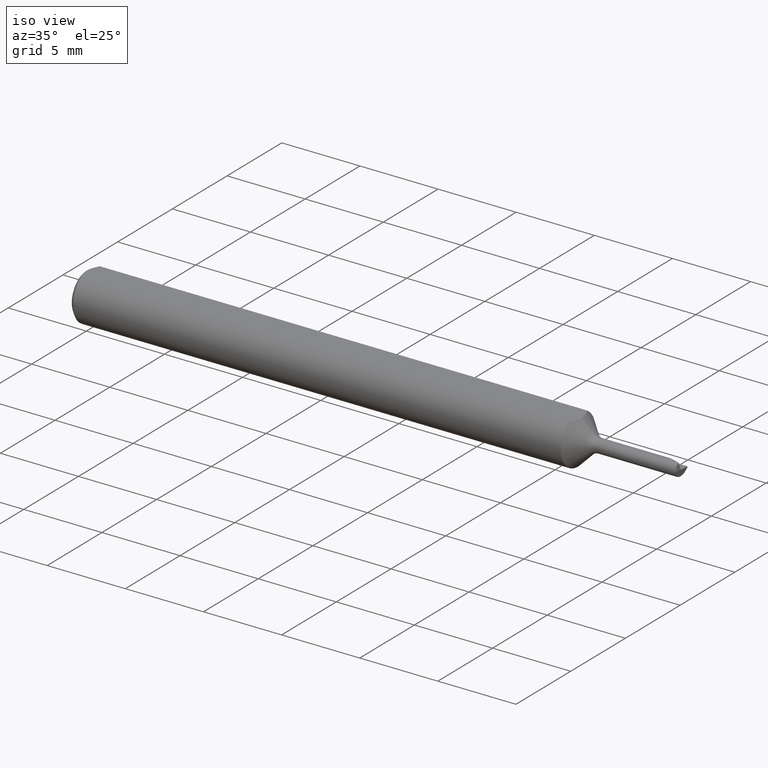
[diagram: clean part render]
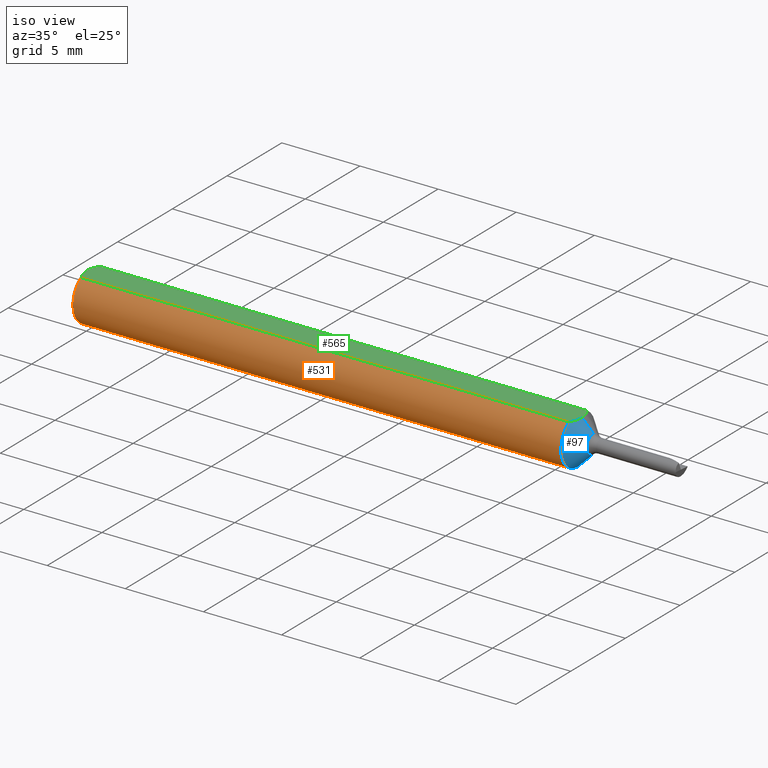
[diagram: same view with three faces highlighted in distinct colors, each labeled with its STEP entity id]
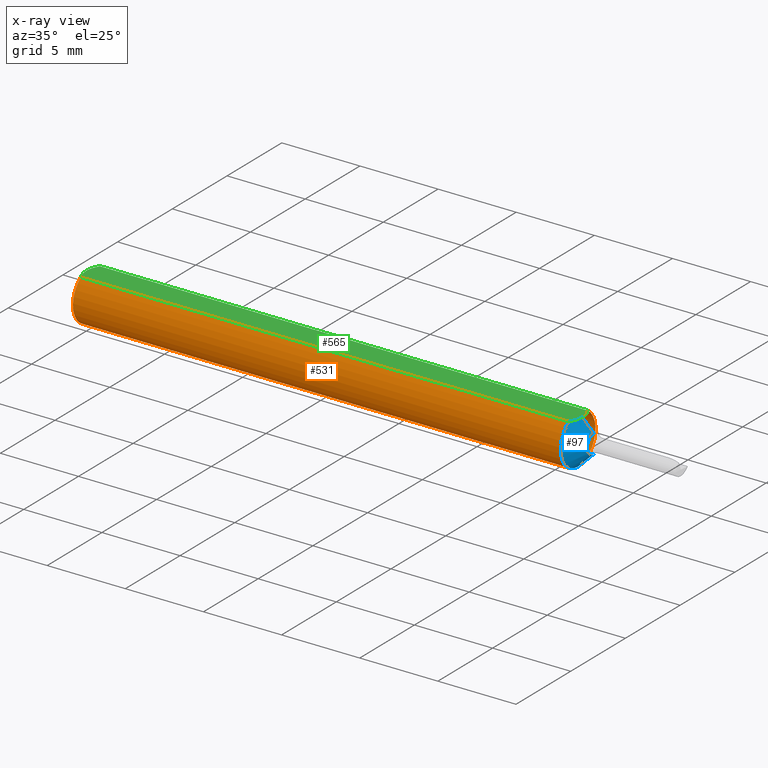
[diagram: x-ray of the same camera — body ghosted, the three highlighted faces saturated]
A machine part, iso view with three faces highlighted in distinct colors.
The next image is the same camera in x-ray (body ghosted, the three faces saturated) — at least one of them is partly hidden behind the body in this view.
Their STEP definitions:

[orange] entity #531 — the highlighted cylindrical surface (edge-blend (fillet) strip) has radius 1.5837 mm, axis along (-1, -0, -0).
#21 = ORIENTED_EDGE ( 'NONE', *, *, #352, .T. ) ;
#36 = AXIS2_PLACEMENT_3D ( 'NONE', #297, #524, #683 ) ;
#46 = DIRECTION ( 'NONE',  ( 0.000000000000000000, 0.000000000000000000, 1.000000000000000000 ) ) ;
#75 = CARTESIAN_POINT ( 'NONE',  ( 0.000000000000000000, 0.03386738844375220686, 0.05235000000000000070 ) ) ;
#76 = EDGE_CURVE ( 'NONE', #393, #588, #231, .T. ) ;
#79 = VERTEX_POINT ( 'NONE', #140 ) ;
#105 = ORIENTED_EDGE ( 'NONE', *, *, #76, .T. ) ;
#109 = EDGE_LOOP ( 'NONE', ( #21, #649, #546, #105, #596, #701 ) ) ;
#140 = CARTESIAN_POINT ( 'NONE',  ( 1.239150000000000418, 0.03386738844375220686, 0.05235000000000000070 ) ) ;
#153 = VERTEX_POINT ( 'NONE', #686 ) ;
#182 = CYLINDRICAL_SURFACE ( 'NONE', #238, 0.06235000000000000264 ) ;
#213 = DIRECTION ( 'NONE',  ( -1.000000000000000000, -0.000000000000000000, -0.000000000000000000 ) ) ;
#219 = DIRECTION ( 'NONE',  ( -1.000000000000000000, -0.000000000000000000, -0.000000000000000000 ) ) ;
#231 = CIRCLE ( 'NONE', #36, 0.06235000000000000264 ) ;
#238 = AXIS2_PLACEMENT_3D ( 'NONE', #630, #619, #364 ) ;
#249 = CARTESIAN_POINT ( 'NONE',  ( 1.239150000000000418, 7.635672792683746671E-18, -0.06235000000000000264 ) ) ;
#263 = CIRCLE ( 'NONE', #661, 0.06235000000000000264 ) ;
#297 = CARTESIAN_POINT ( 'NONE',  ( 0.009999999999999887451, 0.000000000000000000, 0.000000000000000000 ) ) ;
#298 = AXIS2_PLACEMENT_3D ( 'NONE', #483, #548, #327 ) ;
#307 = VERTEX_POINT ( 'NONE', #494 ) ;
#321 = EDGE_CURVE ( 'NONE', #669, #307, #540, .T. ) ;
#327 = DIRECTION ( 'NONE',  ( 0.000000000000000000, 0.000000000000000000, 1.000000000000000000 ) ) ;
#338 = EDGE_CURVE ( 'NONE', #307, #393, #645, .T. ) ;
#352 = EDGE_CURVE ( 'NONE', #79, #669, #447, .T. ) ;
#364 = DIRECTION ( 'NONE',  ( 0.000000000000000000, 0.000000000000000000, 1.000000000000000000 ) ) ;
#388 = VECTOR ( 'NONE', #660, 39.37007874015748143 ) ;
#393 = VERTEX_POINT ( 'NONE', #590 ) ;
#404 = DIRECTION ( 'NONE',  ( 1.000000000000000000, 0.000000000000000000, 0.000000000000000000 ) ) ;
#412 = EDGE_CURVE ( 'NONE', #153, #79, #512, .T. ) ;
#440 = CARTESIAN_POINT ( 'NONE',  ( 1.239150000000000418, 0.000000000000000000, 0.000000000000000000 ) ) ;
#447 = CIRCLE ( 'NONE', #298, 0.06235000000000000264 ) ;
#455 = FACE_OUTER_BOUND ( 'NONE', #109, .T. ) ;
#462 = CARTESIAN_POINT ( 'NONE',  ( 0.009999999999999887451, 0.000000000000000000, 0.000000000000000000 ) ) ;
#483 = CARTESIAN_POINT ( 'NONE',  ( 1.239150000000000418, 0.000000000000000000, 0.000000000000000000 ) ) ;
#494 = CARTESIAN_POINT ( 'NONE',  ( 1.239150000000000418, -0.03386738844375220686, 0.05235000000000000070 ) ) ;
#512 = LINE ( 'NONE', #75, #388 ) ;
#517 = AXIS2_PLACEMENT_3D ( 'NONE', #440, #213, #46 ) ;
#523 = DIRECTION ( 'NONE',  ( 0.000000000000000000, 0.000000000000000000, -1.000000000000000000 ) ) ;
#524 = DIRECTION ( 'NONE',  ( 1.000000000000000000, 0.000000000000000000, 0.000000000000000000 ) ) ;
#531 = ADVANCED_FACE ( 'NONE', ( #455 ), #182, .T. ) ;
#540 = CIRCLE ( 'NONE', #517, 0.06235000000000000264 ) ;
#546 = ORIENTED_EDGE ( 'NONE', *, *, #338, .T. ) ;
#548 = DIRECTION ( 'NONE',  ( -1.000000000000000000, -0.000000000000000000, -0.000000000000000000 ) ) ;
#582 = CARTESIAN_POINT ( 'NONE',  ( 0.009999999999999887451, 0.000000000000000000, -0.06235000000000000264 ) ) ;
#588 = VERTEX_POINT ( 'NONE', #582 ) ;
#590 = CARTESIAN_POINT ( 'NONE',  ( 0.01000000000000840841, -0.03386738844395137393, 0.05235000000000001458 ) ) ;
#592 = EDGE_CURVE ( 'NONE', #588, #153, #263, .T. ) ;
#596 = ORIENTED_EDGE ( 'NONE', *, *, #592, .T. ) ;
#597 = CARTESIAN_POINT ( 'NONE',  ( 0.000000000000000000, -0.03386738844375220686, 0.05235000000000000070 ) ) ;
#619 = DIRECTION ( 'NONE',  ( -1.000000000000000000, -0.000000000000000000, -0.000000000000000000 ) ) ;
#626 = VECTOR ( 'NONE', #219, 39.37007874015748143 ) ;
#630 = CARTESIAN_POINT ( 'NONE',  ( 0.000000000000000000, 0.000000000000000000, 0.000000000000000000 ) ) ;
#645 = LINE ( 'NONE', #597, #626 ) ;
#649 = ORIENTED_EDGE ( 'NONE', *, *, #321, .T. ) ;
#660 = DIRECTION ( 'NONE',  ( 1.000000000000000000, 0.000000000000000000, 0.000000000000000000 ) ) ;
#661 = AXIS2_PLACEMENT_3D ( 'NONE', #462, #404, #523 ) ;
#669 = VERTEX_POINT ( 'NONE', #249 ) ;
#683 = DIRECTION ( 'NONE',  ( 0.000000000000000000, 0.000000000000000000, -1.000000000000000000 ) ) ;
#686 = CARTESIAN_POINT ( 'NONE',  ( 0.009999999999999890921, 0.03386738844375217911, 0.05235000000000001458 ) ) ;
#701 = ORIENTED_EDGE ( 'NONE', *, *, #412, .T. ) ;

[blue] entity #97 — the highlighted conical surface has half-angle 45 deg.
#12 = CARTESIAN_POINT ( 'NONE',  ( 1.249150000000000205, -0.005924191432847210857, 0.05235000000000002152 ) ) ;
#13 = ORIENTED_EDGE ( 'NONE', *, *, #608, .T. ) ;
#41 = CIRCLE ( 'NONE', #381, 0.02382233047033641138 ) ;
#43 = CARTESIAN_POINT ( 'NONE',  ( 1.277677669529663662, 2.917394075872794992E-18, -0.02382233047033641138 ) ) ;
#46 = DIRECTION ( 'NONE',  ( 0.000000000000000000, 0.000000000000000000, 1.000000000000000000 ) ) ;
#47 = VECTOR ( 'NONE', #677, 39.37007874015748143 ) ;
#83 = LINE ( 'NONE', #43, #530 ) ;
#86 = DIRECTION ( 'NONE',  ( -1.000000000000000000, -0.000000000000000000, -0.000000000000000000 ) ) ;
#87 = ORIENTED_EDGE ( 'NONE', *, *, #321, .F. ) ;
#97 = ADVANCED_FACE ( 'NONE', ( #191 ), #313, .T. ) ;
#99 = VERTEX_POINT ( 'NONE', #199 ) ;
#119 = CARTESIAN_POINT ( 'NONE',  ( 1.249150000000000205, -2.188252446738582210E-21, 0.05235000000000001458 ) ) ;
#141 = EDGE_CURVE ( 'NONE', #403, #669, #83, .T. ) ;
#150 = EDGE_CURVE ( 'NONE', #403, #550, #41, .T. ) ;
#191 = FACE_OUTER_BOUND ( 'NONE', #612, .T. ) ;
#194 = DIRECTION ( 'NONE',  ( -1.000000000000000000, -0.000000000000000000, -0.000000000000000000 ) ) ;
#198 = LINE ( 'NONE', #633, #47 ) ;
#199 = CARTESIAN_POINT ( 'NONE',  ( 1.249150000000000205, -2.188252446738582210E-21, 0.05235000000000001458 ) ) ;
#213 = DIRECTION ( 'NONE',  ( -1.000000000000000000, -0.000000000000000000, -0.000000000000000000 ) ) ;
#249 = CARTESIAN_POINT ( 'NONE',  ( 1.239150000000000418, 7.635672792683746671E-18, -0.06235000000000000264 ) ) ;
#279 = CARTESIAN_POINT ( 'NONE',  ( 1.248078678928530971, -0.01191689336434305184, 0.05235000000000002152 ) ) ;
#289 = AXIS2_PLACEMENT_3D ( 'NONE', #309, #194, #365 ) ;
#299 = CARTESIAN_POINT ( 'NONE',  ( 1.277677669529663662, 0.000000000000000000, 0.02382233047033639403 ) ) ;
#307 = VERTEX_POINT ( 'NONE', #494 ) ;
#309 = CARTESIAN_POINT ( 'NONE',  ( 1.277677669529663662, 0.000000000000000000, 0.000000000000000000 ) ) ;
#313 = CONICAL_SURFACE ( 'NONE', #289, 0.02382233047033641138, 0.7853981633974518317 ) ;
#320 = ORIENTED_EDGE ( 'NONE', *, *, #141, .F. ) ;
#321 = EDGE_CURVE ( 'NONE', #669, #307, #540, .T. ) ;
#337 = CARTESIAN_POINT ( 'NONE',  ( 1.242000635225909866, -0.02861935738783995958, 0.05235000000000002152 ) ) ;
#365 = DIRECTION ( 'NONE',  ( 0.000000000000000000, 0.000000000000000000, 1.000000000000000000 ) ) ;
#381 = AXIS2_PLACEMENT_3D ( 'NONE', #475, #86, #695 ) ;
#382 = CARTESIAN_POINT ( 'NONE',  ( 1.277677669529663662, 2.917394075872792296E-18, -0.02382233047033639403 ) ) ;
#403 = VERTEX_POINT ( 'NONE', #382 ) ;
#409 = ORIENTED_EDGE ( 'NONE', *, *, #428, .T. ) ;
#425 = B_SPLINE_CURVE_WITH_KNOTS ( 'NONE', 3,
 ( #119, #12, #279, #561, #337, #566 ),
 .UNSPECIFIED., .F., .F.,
 ( 4, 2, 4 ),
 ( 0.002951453973688291169, 0.003400644490106667032, 0.003849835006525042895 ),
 .UNSPECIFIED. ) ;
#428 = EDGE_CURVE ( 'NONE', #99, #307, #425, .T. ) ;
#440 = CARTESIAN_POINT ( 'NONE',  ( 1.239150000000000418, 0.000000000000000000, 0.000000000000000000 ) ) ;
#475 = CARTESIAN_POINT ( 'NONE',  ( 1.277677669529663662, 0.000000000000000000, 0.000000000000000000 ) ) ;
#494 = CARTESIAN_POINT ( 'NONE',  ( 1.239150000000000418, -0.03386738844375220686, 0.05235000000000000070 ) ) ;
#496 = ORIENTED_EDGE ( 'NONE', *, *, #150, .T. ) ;
#517 = AXIS2_PLACEMENT_3D ( 'NONE', #440, #213, #46 ) ;
#530 = VECTOR ( 'NONE', #583, 39.37007874015748143 ) ;
#540 = CIRCLE ( 'NONE', #517, 0.06235000000000000264 ) ;
#550 = VERTEX_POINT ( 'NONE', #299 ) ;
#561 = CARTESIAN_POINT ( 'NONE',  ( 1.244483314197798673, -0.02321803743435398026, 0.05235000000000001458 ) ) ;
#566 = CARTESIAN_POINT ( 'NONE',  ( 1.239150000000000418, -0.03386738844375220686, 0.05235000000000000070 ) ) ;
#583 = DIRECTION ( 'NONE',  ( -0.7071067811865450192, 8.659560562354963673E-17, -0.7071067811865500152 ) ) ;
#608 = EDGE_CURVE ( 'NONE', #550, #99, #198, .T. ) ;
#612 = EDGE_LOOP ( 'NONE', ( #320, #496, #13, #409, #87 ) ) ;
#633 = CARTESIAN_POINT ( 'NONE',  ( 1.277677669529663662, 0.000000000000000000, 0.02382233047033641138 ) ) ;
#669 = VERTEX_POINT ( 'NONE', #249 ) ;
#677 = DIRECTION ( 'NONE',  ( -0.7071067811865450192, 0.000000000000000000, 0.7071067811865500152 ) ) ;
#695 = DIRECTION ( 'NONE',  ( 0.000000000000000000, 0.000000000000000000, 1.000000000000000000 ) ) ;

[green] entity #565 — the highlighted planar face has unit normal (0, 0, -1).
#3 = CARTESIAN_POINT ( 'NONE',  ( 0.000000000000000000, 0.000000000000000000, 0.05235000000000033377 ) ) ;
#12 = CARTESIAN_POINT ( 'NONE',  ( 1.249150000000000205, -0.005924191432847210857, 0.05235000000000002152 ) ) ;
#40 = VERTEX_POINT ( 'NONE', #563 ) ;
#75 = CARTESIAN_POINT ( 'NONE',  ( 0.000000000000000000, 0.03386738844375220686, 0.05235000000000000070 ) ) ;
#78 = DIRECTION ( 'NONE',  ( 0.000000000000000000, 0.000000000000000000, -1.000000000000000000 ) ) ;
#79 = VERTEX_POINT ( 'NONE', #140 ) ;
#82 = CARTESIAN_POINT ( 'NONE',  ( 0.004671770759546769666, 0.02323517832780105236, 0.05235000000000002152 ) ) ;
#90 = CARTESIAN_POINT ( 'NONE',  ( 1.249150000000000205, -2.188252446738582210E-21, 0.05235000000000001458 ) ) ;
#99 = VERTEX_POINT ( 'NONE', #199 ) ;
#113 = EDGE_LOOP ( 'NONE', ( #377, #581, #118, #237, #262, #502 ) ) ;
#118 = ORIENTED_EDGE ( 'NONE', *, *, #691, .T. ) ;
#119 = CARTESIAN_POINT ( 'NONE',  ( 1.249150000000000205, -2.188252446738582210E-21, 0.05235000000000001458 ) ) ;
#131 = CARTESIAN_POINT ( 'NONE',  ( 1.248078676938162879, 0.01191467125359128854, 0.05235000000000001458 ) ) ;
#140 = CARTESIAN_POINT ( 'NONE',  ( 1.239150000000000418, 0.03386738844375220686, 0.05235000000000000070 ) ) ;
#142 = CARTESIAN_POINT ( 'NONE',  ( 1.244488220844932602, 0.02320483992252773964, 0.05235000000000002152 ) ) ;
#153 = VERTEX_POINT ( 'NONE', #686 ) ;
#199 = CARTESIAN_POINT ( 'NONE',  ( 1.249150000000000205, -2.188252446738582210E-21, 0.05235000000000001458 ) ) ;
#212 = CARTESIAN_POINT ( 'NONE',  ( 0.01000000000000840841, -0.03386738844395137393, 0.05235000000000001458 ) ) ;
#219 = DIRECTION ( 'NONE',  ( -1.000000000000000000, -0.000000000000000000, -0.000000000000000000 ) ) ;
#237 = ORIENTED_EDGE ( 'NONE', *, *, #338, .F. ) ;
#245 = PLANE ( 'NONE',  #571 ) ;
#260 = CARTESIAN_POINT ( 'NONE',  ( -1.070637973615595603E-15, -0.005965286321711177862, 0.05235000000000002152 ) ) ;
#262 = ORIENTED_EDGE ( 'NONE', *, *, #428, .F. ) ;
#279 = CARTESIAN_POINT ( 'NONE',  ( 1.248078678928530971, -0.01191689336434305184, 0.05235000000000002152 ) ) ;
#304 = CARTESIAN_POINT ( 'NONE',  ( -1.099542139246802830E-15, 0.005954997531773979953, 0.05235000000000002152 ) ) ;
#307 = VERTEX_POINT ( 'NONE', #494 ) ;
#308 = FACE_OUTER_BOUND ( 'NONE', #113, .T. ) ;
#337 = CARTESIAN_POINT ( 'NONE',  ( 1.242000635225909866, -0.02861935738783995958, 0.05235000000000002152 ) ) ;
#338 = EDGE_CURVE ( 'NONE', #307, #393, #645, .T. ) ;
#360 = B_SPLINE_CURVE_WITH_KNOTS ( 'NONE', 3,
 ( #361, #694, #82, #576, #304, #529 ),
 .UNSPECIFIED., .F., .F.,
 ( 4, 2, 4 ),
 ( 0.0009229516234078821539, 0.001371626545108044996, 0.001820301466808207621 ),
 .UNSPECIFIED. ) ;
#361 = CARTESIAN_POINT ( 'NONE',  ( 0.009999999999999890921, 0.03386738844375217911, 0.05235000000000001458 ) ) ;
#366 = CARTESIAN_POINT ( 'NONE',  ( 1.500000000000000222, 0.06235000000000000264, 0.05235000000000001458 ) ) ;
#377 = ORIENTED_EDGE ( 'NONE', *, *, #412, .F. ) ;
#388 = VECTOR ( 'NONE', #660, 39.37007874015748143 ) ;
#393 = VERTEX_POINT ( 'NONE', #590 ) ;
#412 = EDGE_CURVE ( 'NONE', #153, #79, #512, .T. ) ;
#414 = CARTESIAN_POINT ( 'NONE',  ( 1.241993063989529800, 0.02863329606483933434, 0.05235000000000002152 ) ) ;
#422 = B_SPLINE_CURVE_WITH_KNOTS ( 'NONE', 3,
 ( #3, #260, #497, #490, #643, #212 ),
 .UNSPECIFIED., .F., .F.,
 ( 4, 2, 4 ),
 ( 0.001820301466808207621, 0.002269751589840481119, 0.002719201712872754834 ),
 .UNSPECIFIED. ) ;
#425 = B_SPLINE_CURVE_WITH_KNOTS ( 'NONE', 3,
 ( #119, #12, #279, #561, #337, #566 ),
 .UNSPECIFIED., .F., .F.,
 ( 4, 2, 4 ),
 ( 0.002951453973688291169, 0.003400644490106667032, 0.003849835006525042895 ),
 .UNSPECIFIED. ) ;
#428 = EDGE_CURVE ( 'NONE', #99, #307, #425, .T. ) ;
#490 = CARTESIAN_POINT ( 'NONE',  ( 0.004679365186825695105, -0.02325953974091124477, 0.05235000000000000764 ) ) ;
#494 = CARTESIAN_POINT ( 'NONE',  ( 1.239150000000000418, -0.03386738844375220686, 0.05235000000000000070 ) ) ;
#497 = CARTESIAN_POINT ( 'NONE',  ( 0.001055043921644571291, -0.01186408073217194367, 0.05235000000000002152 ) ) ;
#502 = ORIENTED_EDGE ( 'NONE', *, *, #544, .F. ) ;
#512 = LINE ( 'NONE', #75, #388 ) ;
#516 = DIRECTION ( 'NONE',  ( -1.000000000000000000, 0.000000000000000000, -0.000000000000000000 ) ) ;
#529 = CARTESIAN_POINT ( 'NONE',  ( 0.000000000000000000, 0.000000000000000000, 0.05235000000000033377 ) ) ;
#544 = EDGE_CURVE ( 'NONE', #79, #99, #678, .T. ) ;
#561 = CARTESIAN_POINT ( 'NONE',  ( 1.244483314197798673, -0.02321803743435398026, 0.05235000000000001458 ) ) ;
#563 = CARTESIAN_POINT ( 'NONE',  ( 0.000000000000000000, 0.000000000000000000, 0.05235000000000033377 ) ) ;
#565 = ADVANCED_FACE ( 'NONE', ( #308 ), #245, .F. ) ;
#566 = CARTESIAN_POINT ( 'NONE',  ( 1.239150000000000418, -0.03386738844375220686, 0.05235000000000000070 ) ) ;
#569 = CARTESIAN_POINT ( 'NONE',  ( 1.239150000000000418, 0.03386738844375220686, 0.05235000000000000070 ) ) ;
#571 = AXIS2_PLACEMENT_3D ( 'NONE', #366, #78, #516 ) ;
#576 = CARTESIAN_POINT ( 'NONE',  ( 0.001063697276021357847, 0.01189177144351693735, 0.05235000000000001458 ) ) ;
#579 = CARTESIAN_POINT ( 'NONE',  ( 1.249150000000000427, 0.005920875246928953770, 0.05235000000000002152 ) ) ;
#581 = ORIENTED_EDGE ( 'NONE', *, *, #668, .T. ) ;
#590 = CARTESIAN_POINT ( 'NONE',  ( 0.01000000000000840841, -0.03386738844395137393, 0.05235000000000001458 ) ) ;
#597 = CARTESIAN_POINT ( 'NONE',  ( 0.000000000000000000, -0.03386738844375220686, 0.05235000000000000070 ) ) ;
#626 = VECTOR ( 'NONE', #219, 39.37007874015748143 ) ;
#643 = CARTESIAN_POINT ( 'NONE',  ( 0.007163450771416182694, -0.02864528976632487248, 0.05235000000000001458 ) ) ;
#645 = LINE ( 'NONE', #597, #626 ) ;
#660 = DIRECTION ( 'NONE',  ( 1.000000000000000000, 0.000000000000000000, 0.000000000000000000 ) ) ;
#668 = EDGE_CURVE ( 'NONE', #153, #40, #360, .T. ) ;
#678 = B_SPLINE_CURVE_WITH_KNOTS ( 'NONE', 3,
 ( #569, #414, #142, #131, #579, #90 ),
 .UNSPECIFIED., .F., .F.,
 ( 4, 2, 4 ),
 ( 0.002053575827796383715, 0.002502514900742337442, 0.002951453973688291169 ),
 .UNSPECIFIED. ) ;
#686 = CARTESIAN_POINT ( 'NONE',  ( 0.009999999999999890921, 0.03386738844375217911, 0.05235000000000001458 ) ) ;
#691 = EDGE_CURVE ( 'NONE', #40, #393, #422, .T. ) ;
#694 = CARTESIAN_POINT ( 'NONE',  ( 0.007185421074056205608, 0.02868573718286560742, 0.05235000000000002152 ) ) ;